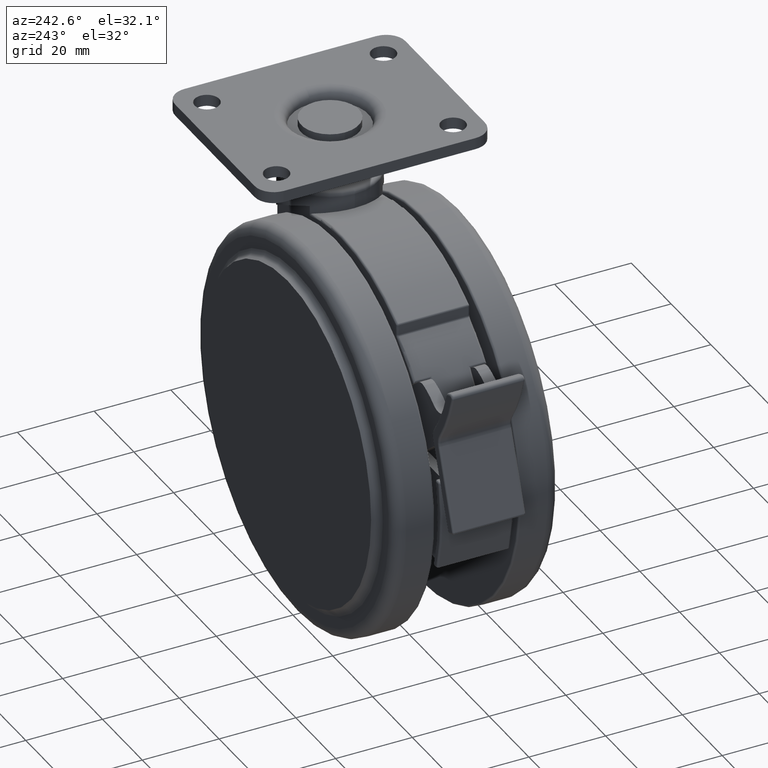
[diagram: clean part render]
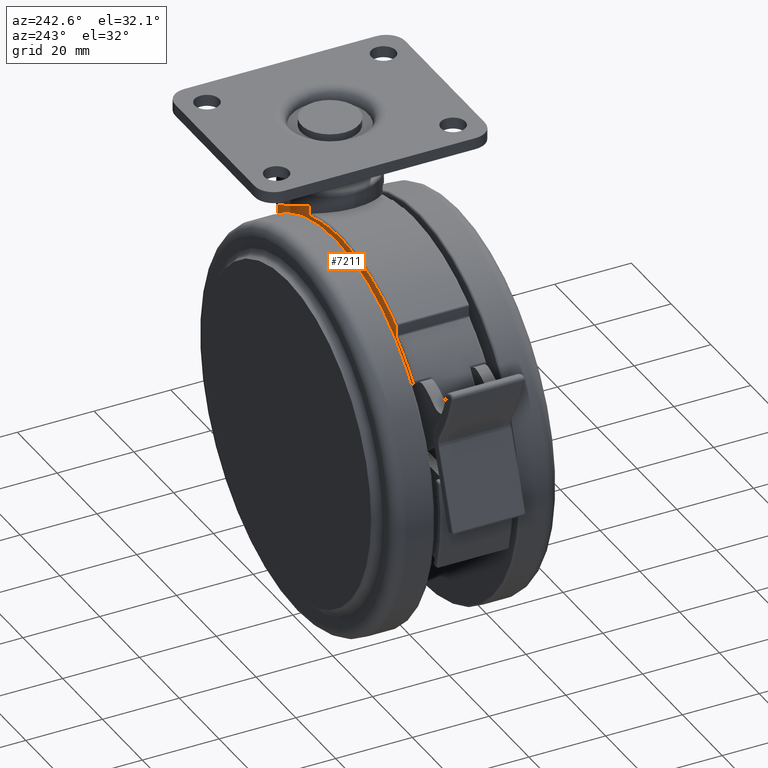
[diagram: same view with one face highlighted and labeled with its STEP entity id]
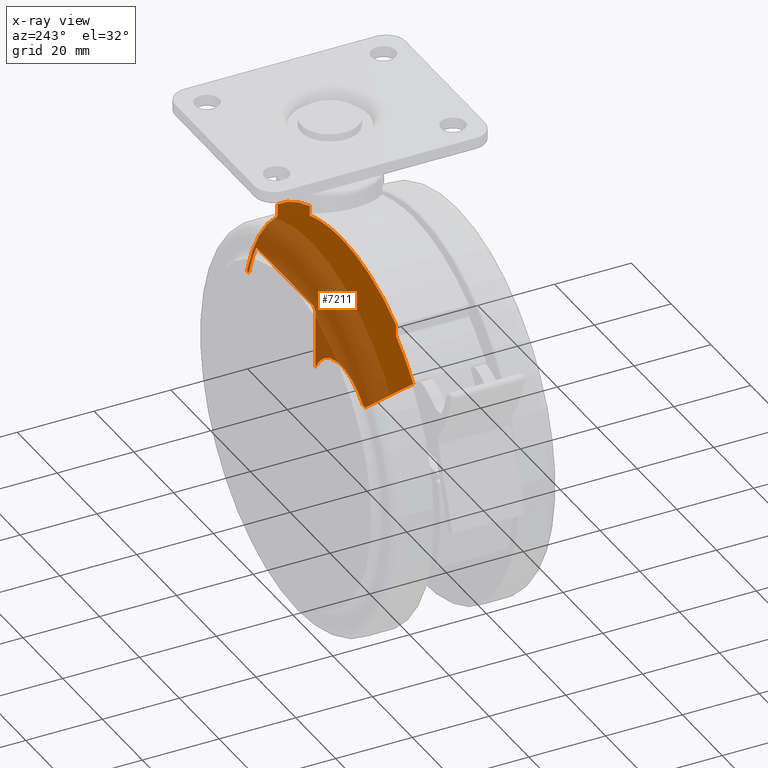
[diagram: x-ray of the same camera — body ghosted, the highlighted face saturated]
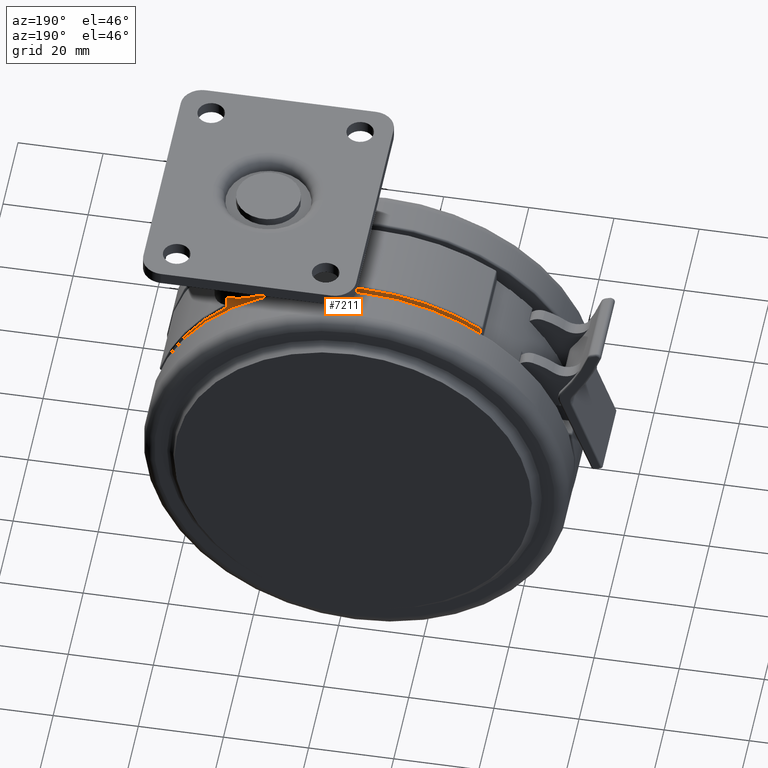
[diagram: same view with one face highlighted and labeled with its STEP entity id]
A machine part, auxiliary view. The second image highlights one B-rep face of the part: STEP entity #7211.
The next image is the same camera in x-ray: the body ghosted, the highlighted face saturated — about 60% of this face is hidden behind the body in this view.
A second angle (auxiliary view) of the same face is appended — the face is thin or edge-on in the first view.
In plain terms, the highlighted planar face has unit normal (0, 1, 0).
Its self-contained STEP definition (entity closure, byte-faithful):
#40 = CARTESIAN_POINT ( 'NONE',  ( 23.41951075243175100, 9.500000000000000000, -39.30000000000000400 ) ) ;
#44 = CARTESIAN_POINT ( 'NONE',  ( -8.124038404635939500, 9.500000000000000000, -3.982792451284944900 ) ) ;
#217 = CARTESIAN_POINT ( 'NONE',  ( 22.45797805921845100, 9.500000000000000000, -39.30000000000000400 ) ) ;
#219 = VERTEX_POINT ( 'NONE', #3662 ) ;
#326 = DIRECTION ( 'NONE',  ( -9.718338800990528200E-017, -0.0000000000000000000, -1.000000000000000000 ) ) ;
#331 = VERTEX_POINT ( 'NONE', #920 ) ;
#354 = CARTESIAN_POINT ( 'NONE',  ( 18.68188989900545100, 9.500000000000000000, -30.30000000000000100 ) ) ;
#371 = CARTESIAN_POINT ( 'NONE',  ( -34.86278049120020500, 9.499999999999539900, -43.50000000000000000 ) ) ;
#405 = VECTOR ( 'NONE', #3110, 1000.000000000000100 ) ;
#433 = CARTESIAN_POINT ( 'NONE',  ( 1.312864420359047900E-013, 9.499999999999380100, -43.50000000000000000 ) ) ;
#450 = CARTESIAN_POINT ( 'NONE',  ( -11.00000000000000000, 9.500000000000000000, -31.71421356237314600 ) ) ;
#476 = LINE ( 'NONE', #1279, #3790 ) ;
#578 = ORIENTED_EDGE ( 'NONE', *, *, #6323, .F. ) ;
#683 = EDGE_CURVE ( 'NONE', #7458, #4514, #5678, .T. ) ;
#697 = DIRECTION ( 'NONE',  ( 0.0000000000000000000, 0.0000000000000000000, 1.000000000000000000 ) ) ;
#736 = VERTEX_POINT ( 'NONE', #354 ) ;
#745 = EDGE_CURVE ( 'NONE', #1464, #7619, #5063, .T. ) ;
#803 = VERTEX_POINT ( 'NONE', #3173 ) ;
#920 = CARTESIAN_POINT ( 'NONE',  ( 8.124038404635850700, 9.500000000000000000, -15.83972707776180200 ) ) ;
#951 = CARTESIAN_POINT ( 'NONE',  ( -10.24640826438692400, 9.500000000000001800, -30.47423870107950300 ) ) ;
#1016 = CARTESIAN_POINT ( 'NONE',  ( -24.00000000000000000, 9.500000000000000000, -53.50000000000000000 ) ) ;
#1021 = EDGE_CURVE ( 'NONE', #7857, #219, #4952, .T. ) ;
#1051 = CARTESIAN_POINT ( 'NONE',  ( -10.00000000000000000, 9.500000000000000000, -30.30000000000000100 ) ) ;
#1059 = AXIS2_PLACEMENT_3D ( 'NONE', #7932, #8611, #4594 ) ;
#1279 = CARTESIAN_POINT ( 'NONE',  ( 0.0000000000000000000, 9.500000000000000000, -30.30000000000000100 ) ) ;
#1319 = CARTESIAN_POINT ( 'NONE',  ( -24.00000000000000000, 9.500000000000000000, -53.50000000000000000 ) ) ;
#1343 = DIRECTION ( 'NONE',  ( 0.0000000000000000000, 1.000000000000000000, 0.0000000000000000000 ) ) ;
#1464 = VERTEX_POINT ( 'NONE', #40 ) ;
#1511 = ORIENTED_EDGE ( 'NONE', *, *, #7118, .T. ) ;
#1522 = VECTOR ( 'NONE', #1783, 1000.000000000000000 ) ;
#1543 = DIRECTION ( 'NONE',  ( 0.0000000000000000000, 1.000000000000000000, 0.0000000000000000000 ) ) ;
#1605 = AXIS2_PLACEMENT_3D ( 'NONE', #1016, #5641, #1680 ) ;
#1608 = VERTEX_POINT ( 'NONE', #6668 ) ;
#1662 = CARTESIAN_POINT ( 'NONE',  ( -36.09490219303194900, 9.500000000000209600, -43.50000000000000000 ) ) ;
#1680 = DIRECTION ( 'NONE',  ( -1.064123455068561400E-014, 0.0000000000000000000, 1.000000000000000000 ) ) ;
#1783 = DIRECTION ( 'NONE',  ( -0.0000000000000000000, -0.0000000000000000000, 1.000000000000000000 ) ) ;
#1827 = CIRCLE ( 'NONE', #6796, 14.76482306023333600 ) ;
#1849 = CARTESIAN_POINT ( 'NONE',  ( -24.00000000000000000, 9.500000000000000000, -53.50000000000000000 ) ) ;
#1912 = ORIENTED_EDGE ( 'NONE', *, *, #4006, .T. ) ;
#1955 = EDGE_CURVE ( 'NONE', #331, #1464, #7551, .T. ) ;
#1987 = DIRECTION ( 'NONE',  ( 0.0000000000000000000, 0.0000000000000000000, 1.000000000000000000 ) ) ;
#2079 = ORIENTED_EDGE ( 'NONE', *, *, #683, .F. ) ;
#2113 = EDGE_CURVE ( 'NONE', #7303, #803, #7133, .T. ) ;
#2134 = CARTESIAN_POINT ( 'NONE',  ( -51.90625000000000000, 9.500000000000000000, -15.68147000559775100 ) ) ;
#2233 = EDGE_CURVE ( 'NONE', #7003, #7857, #3984, .T. ) ;
#2312 = CARTESIAN_POINT ( 'NONE',  ( -10.00000000000000000, 9.500000000000000000, -30.30000000000000100 ) ) ;
#2348 = EDGE_CURVE ( 'NONE', #3327, #4514, #6817, .T. ) ;
#2379 = FACE_OUTER_BOUND ( 'NONE', #4948, .T. ) ;
#2453 = EDGE_CURVE ( 'NONE', #4309, #7458, #7750, .T. ) ;
#2513 = EDGE_CURVE ( 'NONE', #736, #7003, #476, .T. ) ;
#2522 = DIRECTION ( 'NONE',  ( 0.0000000000000000000, 0.0000000000000000000, 1.000000000000000000 ) ) ;
#2589 = VERTEX_POINT ( 'NONE', #2134 ) ;
#2599 = ORIENTED_EDGE ( 'NONE', *, *, #1021, .T. ) ;
#2679 = VERTEX_POINT ( 'NONE', #2925 ) ;
#2844 = AXIS2_PLACEMENT_3D ( 'NONE', #7474, #3479, #8134 ) ;
#2925 = CARTESIAN_POINT ( 'NONE',  ( 8.124038404635850700, 9.500000000000000000, -12.60933900537340000 ) ) ;
#2973 = CARTESIAN_POINT ( 'NONE',  ( -10.85802230080678200, 9.500000000000001800, -31.13193497377839600 ) ) ;
#3102 = DIRECTION ( 'NONE',  ( 0.0000000000000000000, 1.000000000000000000, 0.0000000000000000000 ) ) ;
#3110 = DIRECTION ( 'NONE',  ( 0.7706938918735039000, -3.207031416776904600E-015, -0.6372055594773729000 ) ) ;
#3173 = CARTESIAN_POINT ( 'NONE',  ( -8.124038404635939500, 9.500000000000000000, -6.614993404900570100 ) ) ;
#3197 = VECTOR ( 'NONE', #326, 1000.000000000000000 ) ;
#3219 = CIRCLE ( 'NONE', #4769, 49.50000000000000000 ) ;
#3221 = ORIENTED_EDGE ( 'NONE', *, *, #7709, .T. ) ;
#3232 = ORIENTED_EDGE ( 'NONE', *, *, #7988, .T. ) ;
#3284 = PLANE ( 'NONE',  #1059 ) ;
#3313 = VECTOR ( 'NONE', #3598, 1000.000000000000000 ) ;
#3327 = VERTEX_POINT ( 'NONE', #371 ) ;
#3479 = DIRECTION ( 'NONE',  ( -4.416915315594424900E-015, -1.000000000000000000, -0.0000000000000000000 ) ) ;
#3499 = LINE ( 'NONE', #7107, #1522 ) ;
#3543 = CARTESIAN_POINT ( 'NONE',  ( -60.22056314226059500, 9.500000000000360600, -23.55303344815164800 ) ) ;
#3555 = CARTESIAN_POINT ( 'NONE',  ( -24.00000000000000000, 9.499999999999500800, -53.50000000000000000 ) ) ;
#3598 = DIRECTION ( 'NONE',  ( -1.000000000000000000, 0.0000000000000000000, 0.0000000000000000000 ) ) ;
#3645 = CARTESIAN_POINT ( 'NONE',  ( -11.00000000000000700, 9.500000000000001800, -31.56197611084814300 ) ) ;
#3662 = CARTESIAN_POINT ( 'NONE',  ( -11.00000000000000000, 9.499999999999440400, -46.50000000000000000 ) ) ;
#3695 = VERTEX_POINT ( 'NONE', #5658 ) ;
#3759 = EDGE_CURVE ( 'NONE', #6651, #1608, #3499, .T. ) ;
#3790 = VECTOR ( 'NONE', #5939, 1000.000000000000000 ) ;
#3845 = CARTESIAN_POINT ( 'NONE',  ( -36.01808034249509700, 9.500000000000259300, -43.56351589232460200 ) ) ;
#3958 = ORIENTED_EDGE ( 'NONE', *, *, #2348, .T. ) ;
#3984 = B_SPLINE_CURVE_WITH_KNOTS ( 'NONE', 3,
 ( #2312, #951, #7607, #6973, #2973, #7628, #3645, #8309 ),
 .UNSPECIFIED., .F., .F.,
 ( 4, 2, 2, 4 ),
 ( -6.324555319658827900E-006, 0.0008990402437577024300, 0.001351722643296381300, 0.001804405042835060400 ),
 .UNSPECIFIED. ) ;
#4006 = EDGE_CURVE ( 'NONE', #219, #3327, #1827, .T. ) ;
#4106 = ORIENTED_EDGE ( 'NONE', *, *, #2233, .T. ) ;
#4211 = DIRECTION ( 'NONE',  ( 0.0000000000000000000, 0.0000000000000000000, 1.000000000000000000 ) ) ;
#4284 = CARTESIAN_POINT ( 'NONE',  ( -36.01808034249509700, 9.500000000000259300, -43.56351589232460200 ) ) ;
#4309 = VERTEX_POINT ( 'NONE', #4556 ) ;
#4435 = CIRCLE ( 'NONE', #7800, 49.50000000000000000 ) ;
#4489 = DIRECTION ( 'NONE',  ( 0.7706938918735039000, -3.207031416776904600E-015, -0.6372055594773729000 ) ) ;
#4514 = VERTEX_POINT ( 'NONE', #1662 ) ;
#4554 = AXIS2_PLACEMENT_3D ( 'NONE', #1319, #5977, #1987 ) ;
#4556 = CARTESIAN_POINT ( 'NONE',  ( -60.22261291805480000, 9.500000000000360600, -23.55133870456345200 ) ) ;
#4594 = DIRECTION ( 'NONE',  ( 1.000000000000000000, 0.0000000000000000000, 0.0000000000000000000 ) ) ;
#4769 = AXIS2_PLACEMENT_3D ( 'NONE', #1849, #6496, #2522 ) ;
#4928 = VECTOR ( 'NONE', #8568, 1000.000000000000000 ) ;
#4948 = EDGE_LOOP ( 'NONE', ( #6315, #3232, #578, #5721, #6044, #1511, #7140, #6774, #5582, #6723, #7846, #3221, #6549, #4106, #2599, #1912, #3958, #2079 ) ) ;
#4952 = LINE ( 'NONE', #4981, #3197 ) ;
#4958 = EDGE_CURVE ( 'NONE', #2679, #7303, #5333, .T. ) ;
#4960 = CARTESIAN_POINT ( 'NONE',  ( 0.0000000000000000000, 9.500000000000000000, -39.30000000000000400 ) ) ;
#4981 = CARTESIAN_POINT ( 'NONE',  ( -11.00000000000000000, 9.500000000000000000, 1.069017268108964000E-015 ) ) ;
#5063 = LINE ( 'NONE', #4960, #3313 ) ;
#5267 = CIRCLE ( 'NONE', #1605, 48.57966370149989600 ) ;
#5276 = VECTOR ( 'NONE', #697, 1000.000000000000000 ) ;
#5306 = CARTESIAN_POINT ( 'NONE',  ( -52.50000000000000000, 9.500000000000000000, -14.87682043124874000 ) ) ;
#5320 = CARTESIAN_POINT ( 'NONE',  ( 8.124038404635850700, 9.500000000000000000, -1000.000000000000000 ) ) ;
#5333 = CIRCLE ( 'NONE', #2844, 52.00000000000000000 ) ;
#5418 = AXIS2_PLACEMENT_3D ( 'NONE', #5306, #1343, #5999 ) ;
#5516 = CARTESIAN_POINT ( 'NONE',  ( -24.00000000000000000, 9.500000000000000000, -53.50000000000000000 ) ) ;
#5582 = ORIENTED_EDGE ( 'NONE', *, *, #7293, .F. ) ;
#5641 = DIRECTION ( 'NONE',  ( -0.0000000000000000000, -1.000000000000000000, -0.0000000000000000000 ) ) ;
#5658 = CARTESIAN_POINT ( 'NONE',  ( -24.00000000000000000, 9.500000000000000000, -3.999999999999996400 ) ) ;
#5678 = LINE ( 'NONE', #4284, #405 ) ;
#5699 = DIRECTION ( 'NONE',  ( -1.000000000000000000, 4.161225942742110400E-015, -2.109305645513964900E-015 ) ) ;
#5700 = CIRCLE ( 'NONE', #4554, 47.00000000000000000 ) ;
#5721 = ORIENTED_EDGE ( 'NONE', *, *, #3759, .T. ) ;
#5939 = DIRECTION ( 'NONE',  ( -1.000000000000000000, 0.0000000000000000000, 0.0000000000000000000 ) ) ;
#5977 = DIRECTION ( 'NONE',  ( 0.0000000000000000000, 1.000000000000000000, 0.0000000000000000000 ) ) ;
#5980 = VECTOR ( 'NONE', #4489, 1000.000000000000100 ) ;
#5999 = DIRECTION ( 'NONE',  ( 0.0000000000000000000, 0.0000000000000000000, 1.000000000000000000 ) ) ;
#6044 = ORIENTED_EDGE ( 'NONE', *, *, #8443, .T. ) ;
#6203 = DIRECTION ( 'NONE',  ( 0.0000000000000000000, 0.0000000000000000000, 1.000000000000000000 ) ) ;
#6315 = ORIENTED_EDGE ( 'NONE', *, *, #2453, .F. ) ;
#6323 = EDGE_CURVE ( 'NONE', #6651, #2589, #6379, .T. ) ;
#6379 = CIRCLE ( 'NONE', #5418, 1.000000000000000900 ) ;
#6395 = CARTESIAN_POINT ( 'NONE',  ( -51.50000000000000000, 9.500000000000000000, -14.87682043124874000 ) ) ;
#6496 = DIRECTION ( 'NONE',  ( 0.0000000000000000000, 1.000000000000000000, 0.0000000000000000000 ) ) ;
#6549 = ORIENTED_EDGE ( 'NONE', *, *, #2513, .T. ) ;
#6555 = CARTESIAN_POINT ( 'NONE',  ( -8.124038404635939500, 9.500000000000000000, -1000.000000000000000 ) ) ;
#6651 = VERTEX_POINT ( 'NONE', #6395 ) ;
#6668 = CARTESIAN_POINT ( 'NONE',  ( -51.50000000000000000, 9.500000000000000000, -12.34176874548676000 ) ) ;
#6723 = ORIENTED_EDGE ( 'NONE', *, *, #1955, .T. ) ;
#6774 = ORIENTED_EDGE ( 'NONE', *, *, #4958, .F. ) ;
#6796 = AXIS2_PLACEMENT_3D ( 'NONE', #3555, #8212, #4211 ) ;
#6817 = LINE ( 'NONE', #433, #8383 ) ;
#6973 = CARTESIAN_POINT ( 'NONE',  ( -10.77783477250601200, 9.500000000000000000, -31.00168115180355200 ) ) ;
#7003 = VERTEX_POINT ( 'NONE', #1051 ) ;
#7089 = CARTESIAN_POINT ( 'NONE',  ( -24.00000000000000000, 9.500000000000000000, -53.50000000000000000 ) ) ;
#7107 = CARTESIAN_POINT ( 'NONE',  ( -51.50000000000000000, 9.500000000000000000, -12.07536964558416100 ) ) ;
#7118 = EDGE_CURVE ( 'NONE', #3695, #803, #3219, .T. ) ;
#7133 = LINE ( 'NONE', #6555, #4928 ) ;
#7140 = ORIENTED_EDGE ( 'NONE', *, *, #2113, .F. ) ;
#7211 = ADVANCED_FACE ( 'NONE', ( #2379 ), #3284, .T. ) ;
#7275 = LINE ( 'NONE', #5320, #5276 ) ;
#7293 = EDGE_CURVE ( 'NONE', #331, #2679, #7275, .T. ) ;
#7303 = VERTEX_POINT ( 'NONE', #44 ) ;
#7325 = AXIS2_PLACEMENT_3D ( 'NONE', #7089, #3102, #7751 ) ;
#7458 = VERTEX_POINT ( 'NONE', #3543 ) ;
#7474 = CARTESIAN_POINT ( 'NONE',  ( -24.00000000000000000, 9.500000000000170500, -53.50000000000000000 ) ) ;
#7551 = CIRCLE ( 'NONE', #7325, 49.50000000000000000 ) ;
#7607 = CARTESIAN_POINT ( 'NONE',  ( -10.49335503999982500, 9.500000000000001800, -30.65174711604142700 ) ) ;
#7619 = VERTEX_POINT ( 'NONE', #217 ) ;
#7628 = CARTESIAN_POINT ( 'NONE',  ( -10.96920785614678600, 9.500000000000001800, -31.41287018880906200 ) ) ;
#7709 = EDGE_CURVE ( 'NONE', #7619, #736, #5267, .T. ) ;
#7750 = LINE ( 'NONE', #3845, #5980 ) ;
#7751 = DIRECTION ( 'NONE',  ( 0.0000000000000000000, 0.0000000000000000000, 1.000000000000000000 ) ) ;
#7800 = AXIS2_PLACEMENT_3D ( 'NONE', #5516, #1543, #6203 ) ;
#7846 = ORIENTED_EDGE ( 'NONE', *, *, #745, .T. ) ;
#7857 = VERTEX_POINT ( 'NONE', #450 ) ;
#7932 = CARTESIAN_POINT ( 'NONE',  ( 0.0000000000000000000, 9.500000000000000000, 0.0000000000000000000 ) ) ;
#7988 = EDGE_CURVE ( 'NONE', #4309, #2589, #5700, .T. ) ;
#8134 = DIRECTION ( 'NONE',  ( 3.536167085645030000E-015, 0.0000000000000000000, 1.000000000000000000 ) ) ;
#8212 = DIRECTION ( 'NONE',  ( -4.161225942742110400E-015, -1.000000000000000000, -0.0000000000000000000 ) ) ;
#8309 = CARTESIAN_POINT ( 'NONE',  ( -11.00000000000000000, 9.500000000000000000, -31.71421356237314600 ) ) ;
#8383 = VECTOR ( 'NONE', #5699, 1000.000000000000000 ) ;
#8443 = EDGE_CURVE ( 'NONE', #1608, #3695, #4435, .T. ) ;
#8568 = DIRECTION ( 'NONE',  ( -0.0000000000000000000, -0.0000000000000000000, -1.000000000000000000 ) ) ;
#8611 = DIRECTION ( 'NONE',  ( -0.0000000000000000000, 1.000000000000000000, 0.0000000000000000000 ) ) ;